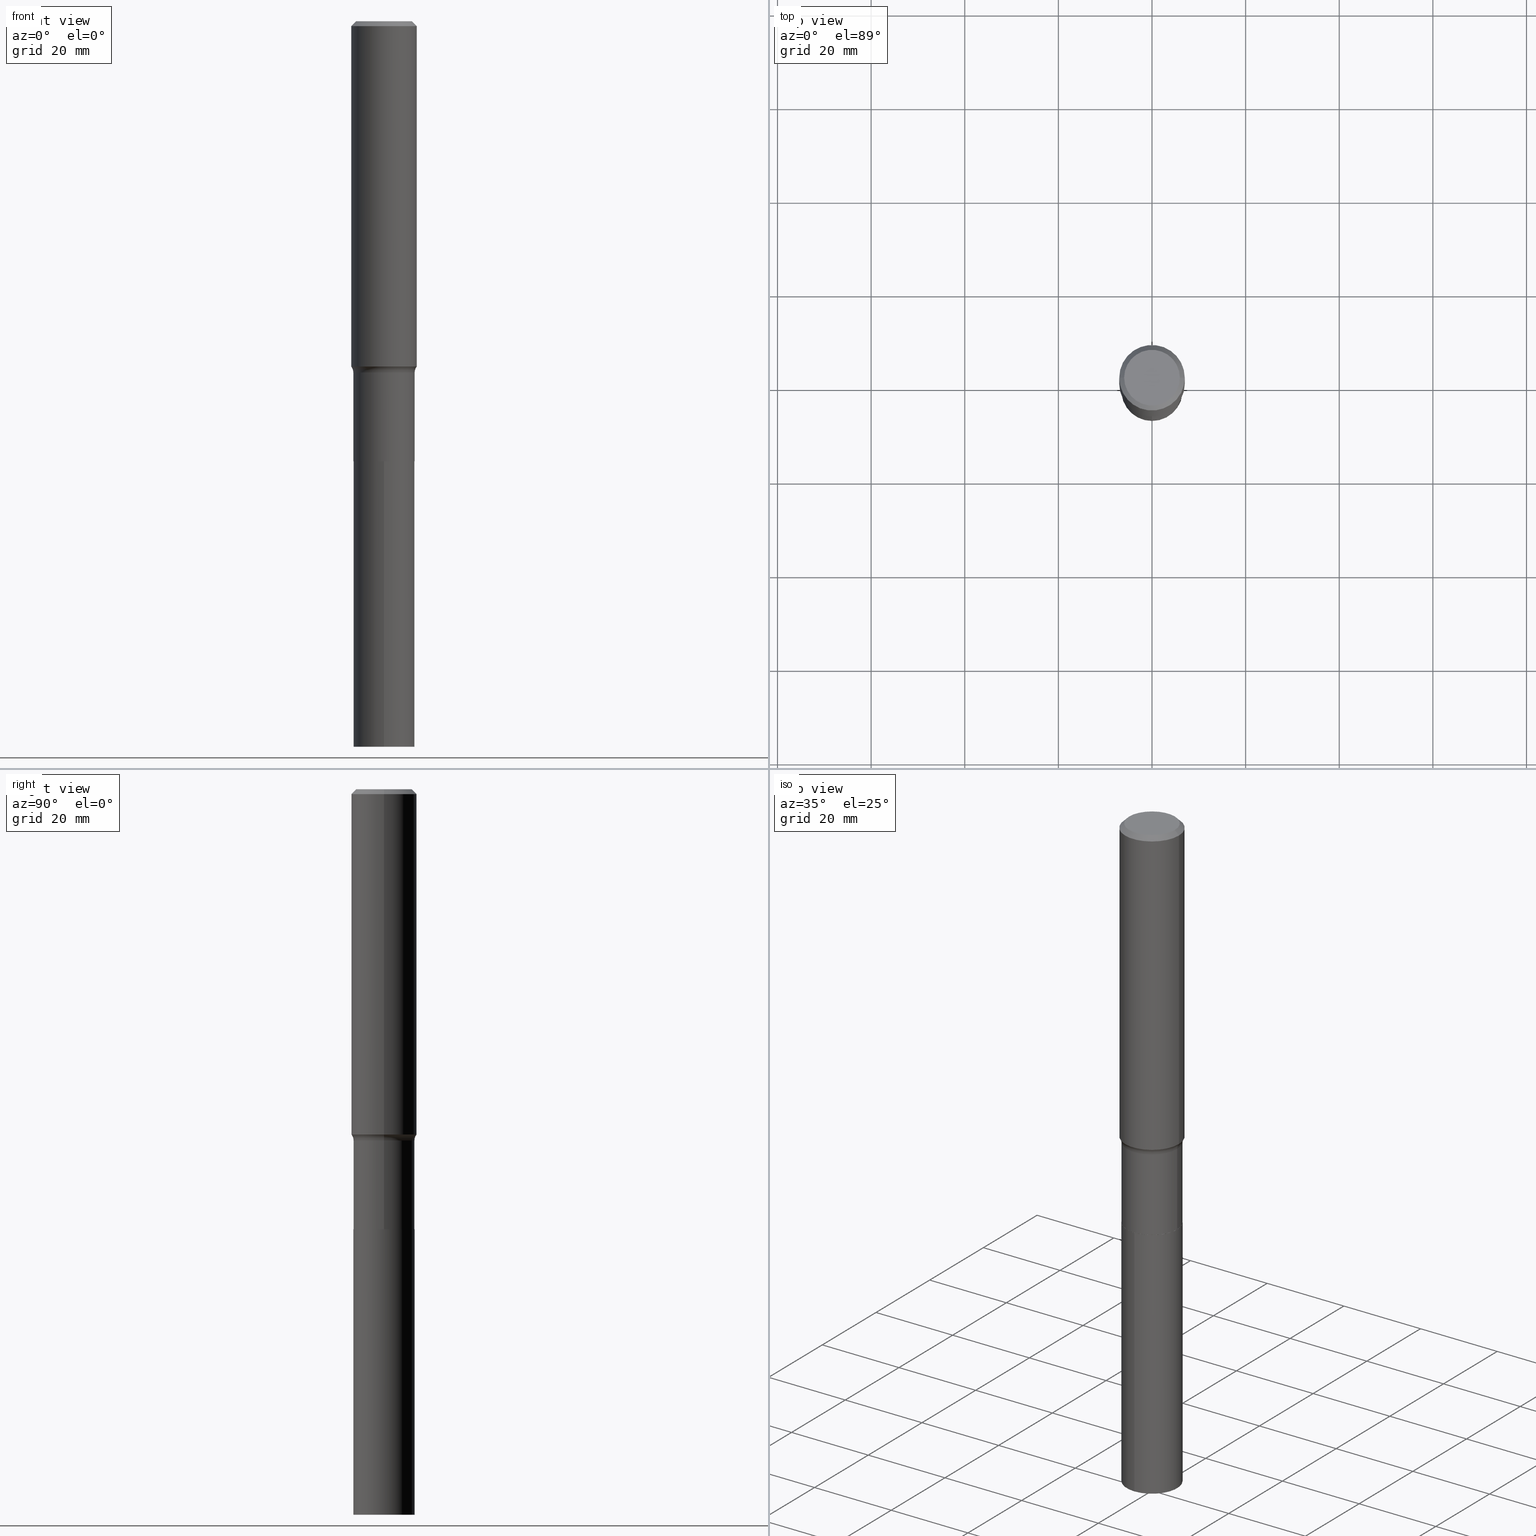
[diagram: canonical four-view strip — front | top / right | iso, engineering-drawing reading convention]
A machine part, canonical four-view strip (front | top / right | iso — engineering-drawing reading convention). The complete STEP part file that produces these views, byte-faithful:
ISO-10303-21;
HEADER;
FILE_DESCRIPTION (( 'STEP AP203' ),
    '1' );
FILE_NAME ('58912.STEP',
    '2024-04-19T14:50:17',
    ( '' ),
    ( '' ),
    'SwSTEP 2.0',
    'SolidWorks 2023',
    '' );
FILE_SCHEMA (( 'CONFIG_CONTROL_DESIGN' ));
ENDSEC;

DATA;
#1 = EDGE_CURVE ( 'NONE', #344, #59, #347, .T. ) ;
#2 = AXIS2_PLACEMENT_3D ( 'NONE', #57, #272, #231 ) ;
#3 = AXIS2_PLACEMENT_3D ( 'NONE', #175, #217, #361 ) ;
#4 = FACE_OUTER_BOUND ( 'NONE', #6, .T. ) ;
#5 = DIRECTION ( 'NONE',  ( -2.445055770018104972E-29, 3.492072830142893324E-15, 1.000000000000000000 ) ) ;
#6 = EDGE_LOOP ( 'NONE', ( #399, #12, #74, #292 ) ) ;
#7 = CARTESIAN_POINT ( 'NONE',  ( 9.051658239213665252E-29, -1.292336902759401938E-14, -3.701400000000000023 ) ) ;
#8 = EDGE_LOOP ( 'NONE', ( #268, #360, #384, #381 ) ) ;
#9 = SHAPE_DEFINITION_REPRESENTATION ( #418, #81 ) ;
#10 = DIRECTION ( 'NONE',  ( 1.000000000000000000, -6.982962677686267499E-15, 4.876176775795936353E-29 ) ) ;
#11 = CARTESIAN_POINT ( 'NONE',  ( -0.2342600000000000238, 1.707997756148671759E-15, 4.101342130332794026E-18 ) ) ;
#12 = ORIENTED_EDGE ( 'NONE', *, *, #156, .T. ) ;
#13 = ORIENTED_EDGE ( 'NONE', *, *, #220, .T. ) ;
#14 = CALENDAR_DATE ( 2024, 19, 4 ) ;
#15 = CIRCLE ( 'NONE', #252, 0.2577999999999999736 ) ;
#16 = VERTEX_POINT ( 'NONE', #303 ) ;
#17 = AXIS2_PLACEMENT_3D ( 'NONE', #323, #286, #435 ) ;
#18 = CARTESIAN_POINT ( 'NONE',  ( -1.800207778307428842E-15, -0.2578000000000129077, -3.701399999999999135 ) ) ;
#19 = ORIENTED_EDGE ( 'NONE', *, *, #429, .T. ) ;
#20 = CARTESIAN_POINT ( 'NONE',  ( 5.104790784534641535E-28, 3.042618069843878036E-14, -6.102399999999998492 ) ) ;
#21 = ORIENTED_EDGE ( 'NONE', *, *, #50, .T. ) ;
#22 =( NAMED_UNIT ( * ) SI_UNIT ( $, .STERADIAN. ) SOLID_ANGLE_UNIT ( ) );
#23 = DIRECTION ( 'NONE',  ( 1.000000000000000000, -6.982962677686267499E-15, 0.000000000000000000 ) ) ;
#24 = VECTOR ( 'NONE', #244, 39.37007874015748143 ) ;
#25 = ADVANCED_FACE ( 'NONE', ( #457 ), #67, .T. ) ;
#26 = LOCAL_TIME ( 10, 50, 17.00000000000000000, #278 ) ;
#27 = CARTESIAN_POINT ( 'NONE',  ( -0.2756000000000004557, -8.180270599869231898E-15, -2.903789364941395501 ) ) ;
#28 = DIRECTION ( 'NONE',  ( -6.982962677686265922E-15, -1.000000000000000000, 4.238709066973255853E-15 ) ) ;
#29 = FACE_OUTER_BOUND ( 'NONE', #420, .T. ) ;
#30 = CIRCLE ( 'NONE', #280, 0.08000000000000009881 ) ;
#31 = CIRCLE ( 'NONE', #17, 0.2577999999999999736 ) ;
#32 = DIRECTION ( 'NONE',  ( -2.445468806185136597E-29, 3.491481338843145583E-15, 1.000000000000000000 ) ) ;
#33 = DIRECTION ( 'NONE',  ( -2.445055770018105252E-29, 3.492072830142893324E-15, 1.000000000000000000 ) ) ;
#34 = DIRECTION ( 'NONE',  ( -2.445055770018105252E-29, 3.492072830142893324E-15, 1.000000000000000000 ) ) ;
#35 = VECTOR ( 'NONE', #99, 39.37007874015748143 ) ;
#36 = LOCAL_TIME ( 10, 50, 17.00000000000000000, #226 ) ;
#37 = APPROVAL_PERSON_ORGANIZATION ( #408, #310, #225 ) ;
#38 = CARTESIAN_POINT ( 'NONE',  ( 9.051658239213665252E-29, -1.292336902759401938E-14, -3.701400000000000023 ) ) ;
#39 = ORIENTED_EDGE ( 'NONE', *, *, #50, .F. ) ;
#40 = PERSON_AND_ORGANIZATION_ROLE ( 'design_supplier' ) ;
#41 = CARTESIAN_POINT ( 'NONE',  ( 9.051658239213665252E-29, -1.292336902759401938E-14, -3.701400000000000023 ) ) ;
#42 = EDGE_LOOP ( 'NONE', ( #39, #115, #122, #176 ) ) ;
#43 = DIRECTION ( 'NONE',  ( -2.445468806185136597E-29, 3.491481338843145583E-15, 1.000000000000000000 ) ) ;
#44 = EDGE_CURVE ( 'NONE', #249, #265, #30, .T. ) ;
#45 = FACE_OUTER_BOUND ( 'NONE', #8, .T. ) ;
#46 = SECURITY_CLASSIFICATION ( '', '', #443 ) ;
#47 = ORIENTED_EDGE ( 'NONE', *, *, #182, .F. ) ;
#48 = PERSON_AND_ORGANIZATION_ROLE ( 'design_owner' ) ;
#49 = APPROVAL_DATE_TIME ( #183, #310 ) ;
#50 = EDGE_CURVE ( 'NONE', #187, #330, #105, .T. ) ;
#51 = APPLICATION_PROTOCOL_DEFINITION ( 'international standard', 'config_control_design', 1994, #363 ) ;
#52 = ORIENTED_EDGE ( 'NONE', *, *, #149, .T. ) ;
#53 = DIRECTION ( 'NONE',  ( 2.445468806185136597E-29, -3.491481338843145583E-15, -1.000000000000000000 ) ) ;
#54 = TOROIDAL_SURFACE ( 'NONE', #111, 0.3377999999999999337, 0.08000000000000009881 ) ;
#55 = APPROVAL_STATUS ( 'not_yet_approved' ) ;
#56 = ORIENTED_EDGE ( 'NONE', *, *, #410, .F. ) ;
#57 = CARTESIAN_POINT ( 'NONE',  ( -1.002970424325033577E-46, 1.431975951230896486E-32, 4.101342130344485961E-18 ) ) ;
#58 = ADVANCED_FACE ( 'NONE', ( #375 ), #124, .T. ) ;
#59 = VERTEX_POINT ( 'NONE', #151 ) ;
#60 = CONICAL_SURFACE ( 'NONE', #368, 0.2572999999999999732, 0.7853981633972775267 ) ;
#61 = CIRCLE ( 'NONE', #267, 0.2577999999999999736 ) ;
#62 = DIRECTION ( 'NONE',  ( 0.7071067811864267805, -2.468850131080992517E-15, 0.7071067811866682540 ) ) ;
#63 = CC_DESIGN_PERSON_AND_ORGANIZATION_ASSIGNMENT ( #322, #40, ( #313 ) ) ;
#64 = ADVANCED_FACE ( 'NONE', ( #98 ), #60, .T. ) ;
#65 = DIRECTION ( 'NONE',  ( -2.445468806185136877E-29, 3.491481338843145188E-15, 1.000000000000000000 ) ) ;
#66 = CYLINDRICAL_SURFACE ( 'NONE', #369, 0.2577999999999999181 ) ;
#67 = CONICAL_SURFACE ( 'NONE', #197, 0.2756000000000000116, 0.7853981633974449483 ) ;
#68 = CIRCLE ( 'NONE', #340, 0.08000000000000009881 ) ;
#69 = DIRECTION ( 'NONE',  ( 1.000000000000000000, -6.982962677686268288E-15, 4.883557194083113462E-29 ) ) ;
#70 = DIRECTION ( 'NONE',  ( 1.000000000000000000, -6.982962677686270655E-15, 0.000000000000000000 ) ) ;
#71 = CC_DESIGN_PERSON_AND_ORGANIZATION_ASSIGNMENT ( #263, #48, ( #246 ) ) ;
#72 = APPROVAL_DATE_TIME ( #316, #421 ) ;
#73 = DIRECTION ( 'NONE',  ( -1.000000000000000000, 7.105427357601001859E-15, 0.000000000000000000 ) ) ;
#74 = ORIENTED_EDGE ( 'NONE', *, *, #78, .F. ) ;
#75 = AXIS2_PLACEMENT_3D ( 'NONE', #261, #93, #89 ) ;
#76 = AXIS2_PLACEMENT_3D ( 'NONE', #109, #401, #215 ) ;
#77 = FACE_OUTER_BOUND ( 'NONE', #460, .T. ) ;
#78 = EDGE_CURVE ( 'NONE', #218, #158, #160, .T. ) ;
#79 = DIRECTION ( 'NONE',  ( 1.000000000000000000, -6.982962677686267499E-15, 4.876157962347795834E-29 ) ) ;
#80 = ORIENTED_EDGE ( 'NONE', *, *, #100, .F. ) ;
#81 = ADVANCED_BREP_SHAPE_REPRESENTATION ( '58912', ( #394, #390, #253 ), #411 ) ;
#82 = DIRECTION ( 'NONE',  ( -2.438088387897960049E-29, 3.491481338843145188E-15, 1.000000000000000000 ) ) ;
#83 = ORIENTED_EDGE ( 'NONE', *, *, #209, .T. ) ;
#84 = DIRECTION ( 'NONE',  ( 1.000000000000000000, 0.000000000000000000, 0.000000000000000000 ) ) ;
#85 = CIRCLE ( 'NONE', #162, 0.2572999999999999732 ) ;
#86 = ORIENTED_EDGE ( 'NONE', *, *, #393, .F. ) ;
#87 = DATE_TIME_ROLE ( 'classification_date' ) ;
#88 =( NAMED_UNIT ( * ) PLANE_ANGLE_UNIT ( ) SI_UNIT ( $, .RADIAN. ) );
#89 = DIRECTION ( 'NONE',  ( 1.000000000000000000, -6.982962677686267499E-15, 0.000000000000000000 ) ) ;
#90 = DIRECTION ( 'NONE',  ( -2.445468806185136597E-29, 3.491481338843145583E-15, 1.000000000000000000 ) ) ;
#91 = CC_DESIGN_DATE_AND_TIME_ASSIGNMENT ( #153, #452, ( #128 ) ) ;
#92 = MECHANICAL_CONTEXT ( 'NONE', #363, 'mechanical' ) ;
#93 = DIRECTION ( 'NONE',  ( -2.445468806185136597E-29, 3.491481338843145583E-15, 1.000000000000000000 ) ) ;
#94 = CC_DESIGN_APPROVAL ( #421, ( #313 ) ) ;
#95 = EDGE_CURVE ( 'NONE', #216, #249, #320, .T. ) ;
#96 = CARTESIAN_POINT ( 'NONE',  ( -0.2577999999999999181, 1.831779172789537697E-15, -1.268101466267714406E-29 ) ) ;
#97 = DIRECTION ( 'NONE',  ( 1.000000000000000000, -6.982962677686275388E-15, 0.000000000000000000 ) ) ;
#98 = FACE_OUTER_BOUND ( 'NONE', #327, .T. ) ;
#99 = DIRECTION ( 'NONE',  ( -0.7071067811864267805, 7.493145998869918709E-15, 0.7071067811866682540 ) ) ;
#100 = EDGE_CURVE ( 'NONE', #218, #265, #273, .T. ) ;
#101 = CIRCLE ( 'NONE', #205, 0.2756000000000000116 ) ;
#102 = DIRECTION ( 'NONE',  ( -6.982962677686265922E-15, -1.000000000000000000, 4.238709066973255853E-15 ) ) ;
#103 = CARTESIAN_POINT ( 'NONE',  ( 0.2572999999999999732, -1.472008532456269554E-14, -3.701400000000000023 ) ) ;
#104 = CARTESIAN_POINT ( 'NONE',  ( 9.051658239213665252E-29, -1.292336902759401938E-14, -3.701400000000000023 ) ) ;
#105 = CIRCLE ( 'NONE', #2, 0.2342600000000000238 ) ;
#106 = EDGE_CURVE ( 'NONE', #142, #218, #276, .T. ) ;
#107 = FACE_OUTER_BOUND ( 'NONE', #185, .T. ) ;
#108 = CARTESIAN_POINT ( 'NONE',  ( 0.2756000000000000116, -2.068842352518111732E-15, -0.04134000000000027930 ) ) ;
#109 = CARTESIAN_POINT ( 'NONE',  ( 9.051658239213665252E-29, -1.292336902759401938E-14, -3.701400000000000023 ) ) ;
#110 = EDGE_LOOP ( 'NONE', ( #324, #436 ) ) ;
#111 = AXIS2_PLACEMENT_3D ( 'NONE', #211, #254, #356 ) ;
#112 = FACE_OUTER_BOUND ( 'NONE', #110, .T. ) ;
#113 = ORIENTED_EDGE ( 'NONE', *, *, #400, .F. ) ;
#114 = PLANE ( 'NONE',  #3 ) ;
#115 = ORIENTED_EDGE ( 'NONE', *, *, #410, .T. ) ;
#116 = DIRECTION ( 'NONE',  ( -2.445468806185136597E-29, 3.491481338843145583E-15, 1.000000000000000000 ) ) ;
#117 = ORIENTED_EDGE ( 'NONE', *, *, #454, .T. ) ;
#118 = CIRCLE ( 'NONE', #331, 0.2572999999999999732 ) ;
#119 = DIRECTION ( 'NONE',  ( -1.000000000000000000, 6.982962677686267499E-15, 0.000000000000000000 ) ) ;
#120 = PERSON_AND_ORGANIZATION ( #297, #449 ) ;
#121 = ORIENTED_EDGE ( 'NONE', *, *, #289, .F. ) ;
#122 = ORIENTED_EDGE ( 'NONE', *, *, #1, .T. ) ;
#123 = DATE_AND_TIME ( #184, #36 ) ;
#124 = CONICAL_SURFACE ( 'NONE', #259, 0.2756000000000000116, 0.7853981633974449483 ) ;
#125 = ORIENTED_EDGE ( 'NONE', *, *, #466, .T. ) ;
#126 = PLANE ( 'NONE',  #402 ) ;
#127 = DIRECTION ( 'NONE',  ( -1.000000000000000000, 6.982962677686267499E-15, 0.000000000000000000 ) ) ;
#128 = PRODUCT_DEFINITION ( 'UNKNOWN', '', #313, #440 ) ;
#129 = DIRECTION ( 'NONE',  ( 2.445055770018104692E-29, -3.492072830142893324E-15, -1.000000000000000000 ) ) ;
#130 = DIRECTION ( 'NONE',  ( -2.445468806185136597E-29, 3.491481338843145583E-15, 1.000000000000000000 ) ) ;
#131 = CIRCLE ( 'NONE', #213, 0.2756000000000004002 ) ;
#132 = VECTOR ( 'NONE', #343, 39.37007874015748143 ) ;
#133 = CC_DESIGN_SECURITY_CLASSIFICATION ( #46, ( #313 ) ) ;
#134 = DIRECTION ( 'NONE',  ( -2.445468806185136877E-29, 3.491481338843145188E-15, 1.000000000000000000 ) ) ;
#135 = DIRECTION ( 'NONE',  ( -2.445468806185136597E-29, 3.491481338843145583E-15, 1.000000000000000000 ) ) ;
#136 = DIRECTION ( 'NONE',  ( -6.982962677686265922E-15, -1.000000000000000000, 4.238709066973255853E-15 ) ) ;
#137 = AXIS2_PLACEMENT_3D ( 'NONE', #291, #34, #256 ) ;
#138 = DIRECTION ( 'NONE',  ( 7.105427357601001859E-15, 1.000000000000000000, -3.491481338843145583E-15 ) ) ;
#139 = CC_DESIGN_PERSON_AND_ORGANIZATION_ASSIGNMENT ( #210, #357, ( #313 ) ) ;
#140 = PLANE ( 'NONE',  #321 ) ;
#141 = ORIENTED_EDGE ( 'NONE', *, *, #173, .T. ) ;
#142 = VERTEX_POINT ( 'NONE', #388 ) ;
#143 = PERSON_AND_ORGANIZATION ( #297, #449 ) ;
#144 = AXIS2_PLACEMENT_3D ( 'NONE', #467, #129, #317 ) ;
#145 = CARTESIAN_POINT ( 'NONE',  ( -0.2572999999999999732, -1.109249334130917217E-14, -3.701400000000000023 ) ) ;
#146 = ORIENTED_EDGE ( 'NONE', *, *, #169, .T. ) ;
#147 = DIRECTION ( 'NONE',  ( -2.445468806185136597E-29, 3.491481338843145583E-15, 1.000000000000000000 ) ) ;
#148 = ORIENTED_EDGE ( 'NONE', *, *, #149, .F. ) ;
#149 = EDGE_CURVE ( 'NONE', #216, #59, #240, .T. ) ;
#150 = LENGTH_MEASURE_WITH_UNIT ( LENGTH_MEASURE( 0.02539999999999999897 ), #447 );
#151 = CARTESIAN_POINT ( 'NONE',  ( -0.2756000000000000116, -3.183176329331085846E-15, -0.04134000000000027930 ) ) ;
#152 = VECTOR ( 'NONE', #65, 39.37007874015748143 ) ;
#153 = DATE_AND_TIME ( #14, #192 ) ;
#154 = CARTESIAN_POINT ( 'NONE',  ( 1.010956804476942398E-30, -1.443378385477766056E-16, -0.04134000000000027930 ) ) ;
#155 = ORIENTED_EDGE ( 'NONE', *, *, #379, .T. ) ;
#156 = EDGE_CURVE ( 'NONE', #365, #158, #387, .T. ) ;
#157 = CARTESIAN_POINT ( 'NONE',  ( 0.000000000000000000, 0.000000000000000000, 0.000000000000000000 ) ) ;
#158 = VERTEX_POINT ( 'NONE', #396 ) ;
#159 = PERSON_AND_ORGANIZATION ( #297, #449 ) ;
#160 = CIRCLE ( 'NONE', #75, 0.2577999999999999736 ) ;
#161 = EDGE_LOOP ( 'NONE', ( #439, #125, #453, #80 ) ) ;
#162 = AXIS2_PLACEMENT_3D ( 'NONE', #349, #204, #353 ) ;
#163 = PRODUCT_RELATED_PRODUCT_CATEGORY ( 'detail', '', ( #246 ) ) ;
#164 = CARTESIAN_POINT ( 'NONE',  ( 1.831779172789657604E-15, 0.2577999999999786573, -6.102399999999998492 ) ) ;
#165 = CARTESIAN_POINT ( 'NONE',  ( 0.2342600000000000238, -1.821115673845785155E-15, 4.101342130356573868E-18 ) ) ;
#166 = CARTESIAN_POINT ( 'NONE',  ( 9.051658239213665252E-29, -1.292336902759401938E-14, -3.701400000000000023 ) ) ;
#167 = CIRCLE ( 'NONE', #76, 0.2577999999999999736 ) ;
#168 = DIRECTION ( 'NONE',  ( 1.000000000000000000, -6.982962677686267499E-15, 0.000000000000000000 ) ) ;
#169 = EDGE_CURVE ( 'NONE', #249, #344, #202, .T. ) ;
#170 = CARTESIAN_POINT ( 'NONE',  ( 0.2577999999999999736, -1.472183106523211783E-14, -3.700899999999999856 ) ) ;
#171 = FACE_OUTER_BOUND ( 'NONE', #195, .T. ) ;
#172 = CIRCLE ( 'NONE', #426, 0.2577999999999999181 ) ;
#173 = EDGE_CURVE ( 'NONE', #249, #216, #131, .T. ) ;
#174 = DIRECTION ( 'NONE',  ( -2.445055770018105252E-29, 3.492072830142893324E-15, 1.000000000000000000 ) ) ;
#175 = CARTESIAN_POINT ( 'NONE',  ( -5.014852121625167883E-47, 7.159879756154482429E-33, 2.050671065172242981E-18 ) ) ;
#176 = ORIENTED_EDGE ( 'NONE', *, *, #429, .F. ) ;
#177 = CARTESIAN_POINT ( 'NONE',  ( -1.800207778307428842E-15, -0.2578000000000129077, -3.701399999999999135 ) ) ;
#178 = ORIENTED_EDGE ( 'NONE', *, *, #156, .F. ) ;
#179 = CIRCLE ( 'NONE', #348, 0.2342600000000000238 ) ;
#180 = DIRECTION ( 'NONE',  ( -2.445468806185136597E-29, 3.491481338843145583E-15, 1.000000000000000000 ) ) ;
#181 = ORIENTED_EDGE ( 'NONE', *, *, #44, .F. ) ;
#182 = EDGE_CURVE ( 'NONE', #445, #442, #15, .T. ) ;
#183 = DATE_AND_TIME ( #295, #458 ) ;
#184 = CALENDAR_DATE ( 2024, 19, 4 ) ;
#185 = EDGE_LOOP ( 'NONE', ( #148, #374, #146, #346 ) ) ;
#186 = PERSON_AND_ORGANIZATION_ROLE ( 'creator' ) ;
#187 = VERTEX_POINT ( 'NONE', #165 ) ;
#188 = CC_DESIGN_DATE_AND_TIME_ASSIGNMENT ( #451, #87, ( #46 ) ) ;
#189 = CLOSED_SHELL ( 'NONE', ( #311, #25, #190, #243, #200, #296, #355, #262, #58, #270, #345, #64 ) ) ;
#190 = ADVANCED_FACE ( 'NONE', ( #312 ), #352, .T. ) ;
#191 = LINE ( 'NONE', #96, #222 ) ;
#192 = LOCAL_TIME ( 10, 50, 17.00000000000000000, #337 ) ;
#193 = DIRECTION ( 'NONE',  ( -2.445468806185136597E-29, 3.491481338843145583E-15, 1.000000000000000000 ) ) ;
#194 = CARTESIAN_POINT ( 'NONE',  ( 0.2756000000000000116, -2.035091086733610886E-15, -0.04134000000000027930 ) ) ;
#195 = EDGE_LOOP ( 'NONE', ( #121, #155, #416, #113 ) ) ;
#196 = CARTESIAN_POINT ( 'NONE',  ( 1.010956804476942398E-30, -1.443378385477766056E-16, -0.04134000000000027930 ) ) ;
#197 = AXIS2_PLACEMENT_3D ( 'NONE', #422, #308, #119 ) ;
#198 = CARTESIAN_POINT ( 'NONE',  ( 0.3377999999999999337, -1.267302981559895605E-14, -2.954099999999999948 ) ) ;
#199 = APPROVAL_PERSON_ORGANIZATION ( #159, #434, #456 ) ;
#200 = ADVANCED_FACE ( 'NONE', ( #277 ), #66, .T. ) ;
#201 = CARTESIAN_POINT ( 'NONE',  ( -0.2756000000000001782, 1.958255779754837378E-15, -1.355658510874252848E-29 ) ) ;
#202 = LINE ( 'NONE', #392, #425 ) ;
#203 = ADVANCED_FACE ( 'NONE', ( #29 ), #468, .T. ) ;
#204 = DIRECTION ( 'NONE',  ( -2.445468806185136597E-29, 3.491481338843145583E-15, 1.000000000000000000 ) ) ;
#205 = AXIS2_PLACEMENT_3D ( 'NONE', #428, #32, #168 ) ;
#206 = CARTESIAN_POINT ( 'NONE',  ( 7.101126311696330922E-29, -1.013852637962407164E-14, -2.903789364941395501 ) ) ;
#207 = CALENDAR_DATE ( 2024, 19, 4 ) ;
#208 = DIRECTION ( 'NONE',  ( 1.000000000000000000, -6.982962677686265922E-15, 4.876176775795935793E-29 ) ) ;
#209 = EDGE_CURVE ( 'NONE', #365, #142, #85, .T. ) ;
#210 = PERSON_AND_ORGANIZATION ( #297, #449 ) ;
#211 = CARTESIAN_POINT ( 'NONE',  ( 7.224159400351512139E-29, -1.031418502307653680E-14, -2.954099999999999948 ) ) ;
#212 = ORIENTED_EDGE ( 'NONE', *, *, #400, .T. ) ;
#213 = AXIS2_PLACEMENT_3D ( 'NONE', #206, #354, #70 ) ;
#214 = AXIS2_PLACEMENT_3D ( 'NONE', #166, #314, #102 ) ;
#215 = DIRECTION ( 'NONE',  ( -6.982962677686265922E-15, -1.000000000000000000, 4.238709066973255853E-15 ) ) ;
#216 = VERTEX_POINT ( 'NONE', #27 ) ;
#217 = DIRECTION ( 'NONE',  ( 2.438088387897960049E-29, -3.491481338843145188E-15, -1.000000000000000000 ) ) ;
#218 = VERTEX_POINT ( 'NONE', #170 ) ;
#219 = LINE ( 'NONE', #177, #431 ) ;
#220 = EDGE_CURVE ( 'NONE', #59, #344, #101, .T. ) ;
#221 = ORIENTED_EDGE ( 'NONE', *, *, #169, .F. ) ;
#222 = VECTOR ( 'NONE', #419, 39.37007874015748143 ) ;
#223 = LINE ( 'NONE', #230, #241 ) ;
#224 = ORIENTED_EDGE ( 'NONE', *, *, #95, .F. ) ;
#225 = APPROVAL_ROLE ( '' ) ;
#226 = COORDINATED_UNIVERSAL_TIME_OFFSET ( 5, 0, .BEHIND. ) ;
#227 = CARTESIAN_POINT ( 'NONE',  ( 7.101126311696330922E-29, -1.013852637962407164E-14, -2.903789364941395501 ) ) ;
#228 = CALENDAR_DATE ( 2024, 19, 4 ) ;
#229 = EDGE_CURVE ( 'NONE', #16, #233, #61, .T. ) ;
#230 = CARTESIAN_POINT ( 'NONE',  ( -0.2756000000000000116, 1.780166675422558965E-15, -0.04134000000000027930 ) ) ;
#231 = DIRECTION ( 'NONE',  ( 1.000000000000000000, -6.982962677686267499E-15, 4.876157962347795834E-29 ) ) ;
#232 = AXIS2_PLACEMENT_3D ( 'NONE', #38, #174, #250 ) ;
#233 = VERTEX_POINT ( 'NONE', #164 ) ;
#234 = CC_DESIGN_PERSON_AND_ORGANIZATION_ASSIGNMENT ( #143, #446, ( #46 ) ) ;
#235 = DIRECTION ( 'NONE',  ( 1.000000000000000000, -6.982962677686269077E-15, 0.000000000000000000 ) ) ;
#236 = DIRECTION ( 'NONE',  ( -6.982962677686266711E-15, -1.000000000000000000, 3.491481338843145583E-15 ) ) ;
#237 = DIRECTION ( 'NONE',  ( -2.445468806185136597E-29, 3.491481338843145583E-15, 1.000000000000000000 ) ) ;
#238 = ADVANCED_FACE ( 'NONE', ( #309 ), #279, .F. ) ;
#239 = CONICAL_SURFACE ( 'NONE', #464, 0.2572999999999999732, 0.7853981633972775267 ) ;
#240 = LINE ( 'NONE', #201, #24 ) ;
#241 = VECTOR ( 'NONE', #334, 39.37007874015748143 ) ;
#242 = FACE_OUTER_BOUND ( 'NONE', #403, .T. ) ;
#243 = ADVANCED_FACE ( 'NONE', ( #242 ), #438, .F. ) ;
#244 = DIRECTION ( 'NONE',  ( -2.445468806185136877E-29, 3.491481338843145188E-15, 1.000000000000000000 ) ) ;
#245 = DIRECTION ( 'NONE',  ( -2.445468806185136597E-29, 3.491481338843145583E-15, 1.000000000000000000 ) ) ;
#246 = PRODUCT ( '58912', '58912', '', ( #92 ) ) ;
#247 = CARTESIAN_POINT ( 'NONE',  ( 0.2577999999999999181, -1.800207778307519167E-15, 1.257078372800191925E-29 ) ) ;
#248 = CARTESIAN_POINT ( 'NONE',  ( -0.3377999999999999337, -7.913971661678919242E-15, -2.954099999999999948 ) ) ;
#249 = VERTEX_POINT ( 'NONE', #432 ) ;
#250 = DIRECTION ( 'NONE',  ( -6.982962677686265922E-15, -1.000000000000000000, 4.238709066973255853E-15 ) ) ;
#251 = ORIENTED_EDGE ( 'NONE', *, *, #379, .F. ) ;
#252 = AXIS2_PLACEMENT_3D ( 'NONE', #104, #351, #28 ) ;
#253 = AXIS2_PLACEMENT_3D ( 'NONE', #157, #373, #84 ) ;
#254 = DIRECTION ( 'NONE',  ( -2.445468806185136597E-29, 3.491481338843145583E-15, 1.000000000000000000 ) ) ;
#255 = ORIENTED_EDGE ( 'NONE', *, *, #282, .T. ) ;
#256 = DIRECTION ( 'NONE',  ( -6.982962677686265922E-15, -1.000000000000000000, 4.238709066973255853E-15 ) ) ;
#257 = CARTESIAN_POINT ( 'NONE',  ( -1.002970424325033577E-46, 1.431975951230896486E-32, 4.101342130344485961E-18 ) ) ;
#258 = ORIENTED_EDGE ( 'NONE', *, *, #350, .F. ) ;
#259 = AXIS2_PLACEMENT_3D ( 'NONE', #196, #53, #127 ) ;
#260 = CC_DESIGN_APPROVAL ( #434, ( #128 ) ) ;
#261 = CARTESIAN_POINT ( 'NONE',  ( 9.050435504810572451E-29, -1.292162328692459709E-14, -3.700899999999999856 ) ) ;
#262 = ADVANCED_FACE ( 'NONE', ( #107 ), #397, .T. ) ;
#263 = PERSON_AND_ORGANIZATION ( #297, #449 ) ;
#264 = EDGE_LOOP ( 'NONE', ( #255, #21 ) ) ;
#265 = VERTEX_POINT ( 'NONE', #404 ) ;
#266 =( CONVERSION_BASED_UNIT ( 'INCH', #150 ) LENGTH_UNIT ( ) NAMED_UNIT ( #269 ) );
#267 = AXIS2_PLACEMENT_3D ( 'NONE', #315, #33, #136 ) ;
#268 = ORIENTED_EDGE ( 'NONE', *, *, #466, .F. ) ;
#269 = DIMENSIONAL_EXPONENTS ( 1.000000000000000000, 0.000000000000000000, 0.000000000000000000, 0.000000000000000000, 0.000000000000000000, 0.000000000000000000, 0.000000000000000000 ) ;
#270 = ADVANCED_FACE ( 'NONE', ( #319 ), #114, .F. ) ;
#271 = PERSON_AND_ORGANIZATION ( #297, #449 ) ;
#272 = DIRECTION ( 'NONE',  ( -2.445468806185136597E-29, 3.491481338843145583E-15, 1.000000000000000000 ) ) ;
#273 = LINE ( 'NONE', #247, #152 ) ;
#274 = AXIS2_PLACEMENT_3D ( 'NONE', #154, #90, #23 ) ;
#275 = CIRCLE ( 'NONE', #137, 0.2577999999999999736 ) ;
#276 = LINE ( 'NONE', #103, #299 ) ;
#277 = FACE_OUTER_BOUND ( 'NONE', #161, .T. ) ;
#278 = COORDINATED_UNIVERSAL_TIME_OFFSET ( 5, 0, .BEHIND. ) ;
#279 = PLANE ( 'NONE',  #144 ) ;
#280 = AXIS2_PLACEMENT_3D ( 'NONE', #198, #236, #97 ) ;
#281 = LOCAL_TIME ( 10, 50, 17.00000000000000000, #336 ) ;
#282 = EDGE_CURVE ( 'NONE', #330, #187, #179, .T. ) ;
#283 = DIRECTION ( 'NONE',  ( 1.000000000000000000, -6.982962677686267499E-15, 4.876176775795935793E-29 ) ) ;
#284 = VERTEX_POINT ( 'NONE', #444 ) ;
#285 = CC_DESIGN_PERSON_AND_ORGANIZATION_ASSIGNMENT ( #271, #186, ( #128 ) ) ;
#286 = DIRECTION ( 'NONE',  ( -2.445468806185136597E-29, 3.491481338843145583E-15, 1.000000000000000000 ) ) ;
#287 = ORIENTED_EDGE ( 'NONE', *, *, #229, .T. ) ;
#288 = DIRECTION ( 'NONE',  ( -2.445468806185136597E-29, 3.491481338843145583E-15, 1.000000000000000000 ) ) ;
#289 = EDGE_CURVE ( 'NONE', #233, #442, #366, .T. ) ;
#290 = CIRCLE ( 'NONE', #395, 0.2577999999999999181 ) ;
#291 = CARTESIAN_POINT ( 'NONE',  ( 1.492223714302713032E-28, -2.130783589276709952E-14, -6.102399999999997604 ) ) ;
#292 = ORIENTED_EDGE ( 'NONE', *, *, #106, .F. ) ;
#293 = DIRECTION ( 'NONE',  ( 1.000000000000000000, -6.982962677686269866E-15, 0.000000000000000000 ) ) ;
#294 = ORIENTED_EDGE ( 'NONE', *, *, #289, .T. ) ;
#295 = CALENDAR_DATE ( 2024, 19, 4 ) ;
#296 = ADVANCED_FACE ( 'NONE', ( #45 ), #364, .T. ) ;
#297 = PERSON ( 'UNSPECIFIED', 'UNSPECIFIED', 'UNSPECIFIED', ('UNSPECIFIED'), ('UNSPECIFIED'), ('UNSPECIFIED') ) ;
#298 = DIRECTION ( 'NONE',  ( 1.000000000000000000, -6.982962677686269866E-15, 0.000000000000000000 ) ) ;
#299 = VECTOR ( 'NONE', #62, 39.37007874015748143 ) ;
#300 = AXIS2_PLACEMENT_3D ( 'NONE', #409, #180, #10 ) ;
#301 = LINE ( 'NONE', #194, #132 ) ;
#302 = ORIENTED_EDGE ( 'NONE', *, *, #229, .F. ) ;
#303 = CARTESIAN_POINT ( 'NONE',  ( -1.800207778307370072E-15, -0.2578000000000212899, -6.102399999999996716 ) ) ;
#304 = DIRECTION ( 'NONE',  ( -6.982962677686265922E-15, -1.000000000000000000, 3.492072830142893324E-15 ) ) ;
#305 = ORIENTED_EDGE ( 'NONE', *, *, #318, .T. ) ;
#306 = CARTESIAN_POINT ( 'NONE',  ( 1.831779172789687186E-15, 0.2577999999999870395, -3.701400000000000912 ) ) ;
#307 = VECTOR ( 'NONE', #5, 39.37007874015748143 ) ;
#308 = DIRECTION ( 'NONE',  ( 2.445468806185136597E-29, -3.491481338843145583E-15, -1.000000000000000000 ) ) ;
#309 = FACE_OUTER_BOUND ( 'NONE', #405, .T. ) ;
#310 = APPROVAL ( #328, 'UNSPECIFIED' ) ;
#311 = ADVANCED_FACE ( 'NONE', ( #4 ), #239, .T. ) ;
#312 = FACE_OUTER_BOUND ( 'NONE', #333, .T. ) ;
#313 = PRODUCT_DEFINITION_FORMATION_WITH_SPECIFIED_SOURCE ( 'ANY', '', #246, .NOT_KNOWN. ) ;
#314 = DIRECTION ( 'NONE',  ( -2.445055770018105252E-29, 3.492072830142893324E-15, 1.000000000000000000 ) ) ;
#315 = CARTESIAN_POINT ( 'NONE',  ( 1.492223714302713032E-28, -2.130783589276709952E-14, -6.102399999999997604 ) ) ;
#316 = DATE_AND_TIME ( #207, #26 ) ;
#317 = DIRECTION ( 'NONE',  ( 6.982962677686265922E-15, 1.000000000000000000, -3.492072830142893324E-15 ) ) ;
#318 = EDGE_CURVE ( 'NONE', #284, #265, #172, .T. ) ;
#319 = FACE_OUTER_BOUND ( 'NONE', #264, .T. ) ;
#320 = CIRCLE ( 'NONE', #339, 0.2756000000000004002 ) ;
#321 = AXIS2_PLACEMENT_3D ( 'NONE', #7, #82, #208 ) ;
#322 = PERSON_AND_ORGANIZATION ( #297, #449 ) ;
#323 = CARTESIAN_POINT ( 'NONE',  ( 9.050435504810572451E-29, -1.292162328692459709E-14, -3.700899999999999856 ) ) ;
#324 = ORIENTED_EDGE ( 'NONE', *, *, #372, .F. ) ;
#325 = DIRECTION ( 'NONE',  ( -2.445055770018104972E-29, 3.492072830142893324E-15, 1.000000000000000000 ) ) ;
#326 = EDGE_CURVE ( 'NONE', #16, #445, #219, .T. ) ;
#327 = EDGE_LOOP ( 'NONE', ( #178, #83, #371, #86 ) ) ;
#328 = APPROVAL_STATUS ( 'not_yet_approved' ) ;
#329 = CARTESIAN_POINT ( 'NONE',  ( 1.831779172789628416E-15, 0.2577999999999870950, -3.701400000000000912 ) ) ;
#330 = VERTEX_POINT ( 'NONE', #11 ) ;
#331 = AXIS2_PLACEMENT_3D ( 'NONE', #41, #147, #293 ) ;
#332 = DIRECTION ( 'NONE',  ( 1.000000000000000000, -6.982962677686269866E-15, 0.000000000000000000 ) ) ;
#333 = EDGE_LOOP ( 'NONE', ( #141, #52, #413, #221 ) ) ;
#334 = DIRECTION ( 'NONE',  ( -0.7071067811865451302, 2.468850131082231817E-15, -0.7071067811865499042 ) ) ;
#335 = EDGE_LOOP ( 'NONE', ( #302, #251 ) ) ;
#336 = COORDINATED_UNIVERSAL_TIME_OFFSET ( 5, 0, .BEHIND. ) ;
#337 = COORDINATED_UNIVERSAL_TIME_OFFSET ( 5, 0, .BEHIND. ) ;
#338 = ORIENTED_EDGE ( 'NONE', *, *, #44, .T. ) ;
#339 = AXIS2_PLACEMENT_3D ( 'NONE', #227, #193, #342 ) ;
#340 = AXIS2_PLACEMENT_3D ( 'NONE', #248, #138, #73 ) ;
#341 = DIRECTION ( 'NONE',  ( -2.445468806185136597E-29, 3.491481338843145583E-15, 1.000000000000000000 ) ) ;
#342 = DIRECTION ( 'NONE',  ( 1.000000000000000000, -6.982962677686270655E-15, 0.000000000000000000 ) ) ;
#343 = DIRECTION ( 'NONE',  ( 0.7071067811865451302, -7.319954787623248157E-15, -0.7071067811865499042 ) ) ;
#344 = VERTEX_POINT ( 'NONE', #108 ) ;
#345 = ADVANCED_FACE ( 'NONE', ( #112 ), #140, .F. ) ;
#346 = ORIENTED_EDGE ( 'NONE', *, *, #220, .F. ) ;
#347 = CIRCLE ( 'NONE', #274, 0.2756000000000000116 ) ;
#348 = AXIS2_PLACEMENT_3D ( 'NONE', #257, #288, #79 ) ;
#349 = CARTESIAN_POINT ( 'NONE',  ( 9.051658239213665252E-29, -1.292336902759401938E-14, -3.701400000000000023 ) ) ;
#350 = EDGE_CURVE ( 'NONE', #216, #284, #68, .T. ) ;
#351 = DIRECTION ( 'NONE',  ( -2.445055770018105252E-29, 3.492072830142893324E-15, 1.000000000000000000 ) ) ;
#352 = CYLINDRICAL_SURFACE ( 'NONE', #376, 0.2756000000000001782 ) ;
#353 = DIRECTION ( 'NONE',  ( 1.000000000000000000, -6.982962677686269866E-15, 0.000000000000000000 ) ) ;
#354 = DIRECTION ( 'NONE',  ( -2.445468806185136597E-29, 3.491481338843145583E-15, 1.000000000000000000 ) ) ;
#355 = ADVANCED_FACE ( 'NONE', ( #77 ), #54, .F. ) ;
#356 = DIRECTION ( 'NONE',  ( 1.000000000000000000, -6.982962677686268288E-15, 4.883557194083113462E-29 ) ) ;
#357 = PERSON_AND_ORGANIZATION_ROLE ( 'creator' ) ;
#358 = CYLINDRICAL_SURFACE ( 'NONE', #232, 0.2577999999999999736 ) ;
#359 = AXIS2_PLACEMENT_3D ( 'NONE', #430, #245, #69 ) ;
#360 = ORIENTED_EDGE ( 'NONE', *, *, #393, .T. ) ;
#361 = DIRECTION ( 'NONE',  ( -1.000000000000000000, 6.982962677686265922E-15, -4.876176775795935793E-29 ) ) ;
#362 = ORIENTED_EDGE ( 'NONE', *, *, #182, .T. ) ;
#363 = APPLICATION_CONTEXT ( 'configuration controlled 3d designs of mechanical parts and assemblies' ) ;
#364 = CYLINDRICAL_SURFACE ( 'NONE', #300, 0.2577999999999999181 ) ;
#365 = VERTEX_POINT ( 'NONE', #145 ) ;
#366 = LINE ( 'NONE', #329, #307 ) ;
#367 = EDGE_LOOP ( 'NONE', ( #56, #383, #19, #13 ) ) ;
#368 = AXIS2_PLACEMENT_3D ( 'NONE', #417, #237, #298 ) ;
#369 = AXIS2_PLACEMENT_3D ( 'NONE', #465, #135, #427 ) ;
#370 = CARTESIAN_POINT ( 'NONE',  ( 7.224159400351512139E-29, -1.031418502307653680E-14, -2.954099999999999948 ) ) ;
#371 = ORIENTED_EDGE ( 'NONE', *, *, #106, .T. ) ;
#372 = EDGE_CURVE ( 'NONE', #142, #365, #118, .T. ) ;
#373 = DIRECTION ( 'NONE',  ( 0.000000000000000000, 0.000000000000000000, 1.000000000000000000 ) ) ;
#374 = ORIENTED_EDGE ( 'NONE', *, *, #95, .T. ) ;
#375 = FACE_OUTER_BOUND ( 'NONE', #367, .T. ) ;
#376 = AXIS2_PLACEMENT_3D ( 'NONE', #463, #130, #462 ) ;
#377 = APPROVAL_PERSON_ORGANIZATION ( #120, #421, #389 ) ;
#378 = CC_DESIGN_APPROVAL ( #310, ( #46 ) ) ;
#379 = EDGE_CURVE ( 'NONE', #233, #16, #275, .T. ) ;
#380 = APPLICATION_PROTOCOL_DEFINITION ( 'international standard', 'config_control_design', 1994, #391 ) ;
#381 = ORIENTED_EDGE ( 'NONE', *, *, #318, .F. ) ;
#382 = DIRECTION ( 'NONE',  ( -2.445055770018104692E-29, 3.492072830142893324E-15, 1.000000000000000000 ) ) ;
#383 = ORIENTED_EDGE ( 'NONE', *, *, #282, .F. ) ;
#384 = ORIENTED_EDGE ( 'NONE', *, *, #100, .T. ) ;
#385 = ADVANCED_FACE ( 'NONE', ( #171 ), #358, .T. ) ;
#386 = CLOSED_SHELL ( 'NONE', ( #203, #461, #385, #238 ) ) ;
#387 = LINE ( 'NONE', #424, #35 ) ;
#388 = CARTESIAN_POINT ( 'NONE',  ( 0.2572999999999999732, -1.472008532456269554E-14, -3.701400000000000023 ) ) ;
#389 = APPROVAL_ROLE ( '' ) ;
#390 = MANIFOLD_SOLID_BREP ( 'Body-Move/Copy2[2]', #189 ) ;
#391 = APPLICATION_CONTEXT ( 'configuration controlled 3d designs of mechanical parts and assemblies' ) ;
#392 = CARTESIAN_POINT ( 'NONE',  ( 0.2756000000000001782, -1.924504513970336532E-15, 1.343874319409360828E-29 ) ) ;
#393 = EDGE_CURVE ( 'NONE', #158, #218, #31, .T. ) ;
#394 = MANIFOLD_SOLID_BREP ( 'Body-Move/Copy2[1]', #386 ) ;
#395 = AXIS2_PLACEMENT_3D ( 'NONE', #370, #341, #235 ) ;
#396 = CARTESIAN_POINT ( 'NONE',  ( -0.2578000000000000291, -9.786124982211029248E-15, -3.700899999999999856 ) ) ;
#397 = CYLINDRICAL_SURFACE ( 'NONE', #450, 0.2756000000000001782 ) ;
#398 = DIRECTION ( 'NONE',  ( -2.445468806185136597E-29, 3.491481338843145583E-15, 1.000000000000000000 ) ) ;
#399 = ORIENTED_EDGE ( 'NONE', *, *, #372, .T. ) ;
#400 = EDGE_CURVE ( 'NONE', #442, #445, #167, .T. ) ;
#401 = DIRECTION ( 'NONE',  ( -2.445055770018105252E-29, 3.492072830142893324E-15, 1.000000000000000000 ) ) ;
#402 = AXIS2_PLACEMENT_3D ( 'NONE', #20, #382, #304 ) ;
#403 = EDGE_LOOP ( 'NONE', ( #224, #448, #305, #181 ) ) ;
#404 = CARTESIAN_POINT ( 'NONE',  ( 0.2577999999999999181, -1.211439280138405597E-14, -2.954099999999999948 ) ) ;
#405 = EDGE_LOOP ( 'NONE', ( #362, #212 ) ) ;
#406 = DIRECTION ( 'NONE',  ( 1.000000000000000000, -6.982962677686269077E-15, 0.000000000000000000 ) ) ;
#407 = ORIENTED_EDGE ( 'NONE', *, *, #173, .F. ) ;
#408 = PERSON_AND_ORGANIZATION ( #297, #449 ) ;
#409 = CARTESIAN_POINT ( 'NONE',  ( 0.000000000000000000, 0.000000000000000000, 0.000000000000000000 ) ) ;
#410 = EDGE_CURVE ( 'NONE', #187, #344, #301, .T. ) ;
#411 =( GEOMETRIC_REPRESENTATION_CONTEXT ( 3 ) GLOBAL_UNCERTAINTY_ASSIGNED_CONTEXT ( ( #423 ) ) GLOBAL_UNIT_ASSIGNED_CONTEXT ( ( #266, #88, #22 ) ) REPRESENTATION_CONTEXT ( 'NONE', 'WORKASPACE' ) );
#412 = FACE_OUTER_BOUND ( 'NONE', #335, .T. ) ;
#413 = ORIENTED_EDGE ( 'NONE', *, *, #1, .F. ) ;
#414 = COORDINATED_UNIVERSAL_TIME_OFFSET ( 5, 0, .BEHIND. ) ;
#415 = APPROVAL_STATUS ( 'not_yet_approved' ) ;
#416 = ORIENTED_EDGE ( 'NONE', *, *, #326, .T. ) ;
#417 = CARTESIAN_POINT ( 'NONE',  ( 9.051658239213665252E-29, -1.292336902759401938E-14, -3.701400000000000023 ) ) ;
#418 = PRODUCT_DEFINITION_SHAPE ( 'NONE', 'NONE',  #128 ) ;
#419 = DIRECTION ( 'NONE',  ( -2.445468806185136877E-29, 3.491481338843145188E-15, 1.000000000000000000 ) ) ;
#420 = EDGE_LOOP ( 'NONE', ( #287, #294, #47, #455 ) ) ;
#421 = APPROVAL ( #415, 'UNSPECIFIED' ) ;
#422 = CARTESIAN_POINT ( 'NONE',  ( 1.010956804476942398E-30, -1.443378385477766056E-16, -0.04134000000000027930 ) ) ;
#423 = UNCERTAINTY_MEASURE_WITH_UNIT (LENGTH_MEASURE( 1.000000000000000082E-05 ), #266, 'distance_accuracy_value', 'NONE');
#424 = CARTESIAN_POINT ( 'NONE',  ( -0.2572999999999999732, -1.109514256848328100E-14, -3.701400000000000023 ) ) ;
#425 = VECTOR ( 'NONE', #134, 39.37007874015748143 ) ;
#426 = AXIS2_PLACEMENT_3D ( 'NONE', #441, #43, #406 ) ;
#427 = DIRECTION ( 'NONE',  ( 1.000000000000000000, -6.982962677686267499E-15, 4.876176775795936353E-29 ) ) ;
#428 = CARTESIAN_POINT ( 'NONE',  ( 1.010956804476942398E-30, -1.443378385477766056E-16, -0.04134000000000027930 ) ) ;
#429 = EDGE_CURVE ( 'NONE', #330, #59, #223, .T. ) ;
#430 = CARTESIAN_POINT ( 'NONE',  ( 7.224159400351512139E-29, -1.031418502307653680E-14, -2.954099999999999948 ) ) ;
#431 = VECTOR ( 'NONE', #325, 39.37007874015748143 ) ;
#432 = CARTESIAN_POINT ( 'NONE',  ( 0.2756000000000004557, -1.206303089359441133E-14, -2.903789364941395501 ) ) ;
#433 = CARTESIAN_POINT ( 'NONE',  ( 0.000000000000000000, 0.000000000000000000, 0.000000000000000000 ) ) ;
#434 = APPROVAL ( #55, 'UNSPECIFIED' ) ;
#435 = DIRECTION ( 'NONE',  ( 1.000000000000000000, -6.982962677686267499E-15, 0.000000000000000000 ) ) ;
#436 = ORIENTED_EDGE ( 'NONE', *, *, #209, .F. ) ;
#437 = CARTESIAN_POINT ( 'NONE',  ( 9.051658239213665252E-29, -1.292336902759401938E-14, -3.701400000000000023 ) ) ;
#438 = TOROIDAL_SURFACE ( 'NONE', #359, 0.3377999999999999337, 0.08000000000000009881 ) ;
#439 = ORIENTED_EDGE ( 'NONE', *, *, #78, .T. ) ;
#440 = DESIGN_CONTEXT ( 'detailed design', #391, 'design' ) ;
#441 = CARTESIAN_POINT ( 'NONE',  ( 7.224159400351512139E-29, -1.031418502307653680E-14, -2.954099999999999948 ) ) ;
#442 = VERTEX_POINT ( 'NONE', #306 ) ;
#443 = SECURITY_CLASSIFICATION_LEVEL ( 'unclassified' ) ;
#444 = CARTESIAN_POINT ( 'NONE',  ( -0.2577999999999999181, -9.786124982211029248E-15, -2.954099999999999948 ) ) ;
#445 = VERTEX_POINT ( 'NONE', #18 ) ;
#446 = PERSON_AND_ORGANIZATION_ROLE ( 'classification_officer' ) ;
#447 =( LENGTH_UNIT ( ) NAMED_UNIT ( * ) SI_UNIT ( $, .METRE. ) );
#448 = ORIENTED_EDGE ( 'NONE', *, *, #350, .T. ) ;
#449 = ORGANIZATION ( 'UNSPECIFIED', 'UNSPECIFIED', '' ) ;
#450 = AXIS2_PLACEMENT_3D ( 'NONE', #433, #398, #283 ) ;
#451 = DATE_AND_TIME ( #228, #281 ) ;
#452 = DATE_TIME_ROLE ( 'creation_date' ) ;
#453 = ORIENTED_EDGE ( 'NONE', *, *, #454, .F. ) ;
#454 = EDGE_CURVE ( 'NONE', #265, #284, #290, .T. ) ;
#455 = ORIENTED_EDGE ( 'NONE', *, *, #326, .F. ) ;
#456 = APPROVAL_ROLE ( '' ) ;
#457 = FACE_OUTER_BOUND ( 'NONE', #42, .T. ) ;
#458 = LOCAL_TIME ( 10, 50, 17.00000000000000000, #414 ) ;
#459 = APPROVAL_DATE_TIME ( #123, #434 ) ;
#460 = EDGE_LOOP ( 'NONE', ( #258, #407, #338, #117 ) ) ;
#461 = ADVANCED_FACE ( 'NONE', ( #412 ), #126, .F. ) ;
#462 = DIRECTION ( 'NONE',  ( 1.000000000000000000, -6.982962677686267499E-15, 4.876176775795935793E-29 ) ) ;
#463 = CARTESIAN_POINT ( 'NONE',  ( 0.000000000000000000, 0.000000000000000000, 0.000000000000000000 ) ) ;
#464 = AXIS2_PLACEMENT_3D ( 'NONE', #437, #116, #332 ) ;
#465 = CARTESIAN_POINT ( 'NONE',  ( 0.000000000000000000, 0.000000000000000000, 0.000000000000000000 ) ) ;
#466 = EDGE_CURVE ( 'NONE', #158, #284, #191, .T. ) ;
#467 = CARTESIAN_POINT ( 'NONE',  ( 9.051658239213665252E-29, -1.292336902759401938E-14, -3.701400000000000023 ) ) ;
#468 = CYLINDRICAL_SURFACE ( 'NONE', #214, 0.2577999999999999736 ) ;
ENDSEC;
END-ISO-10303-21;
